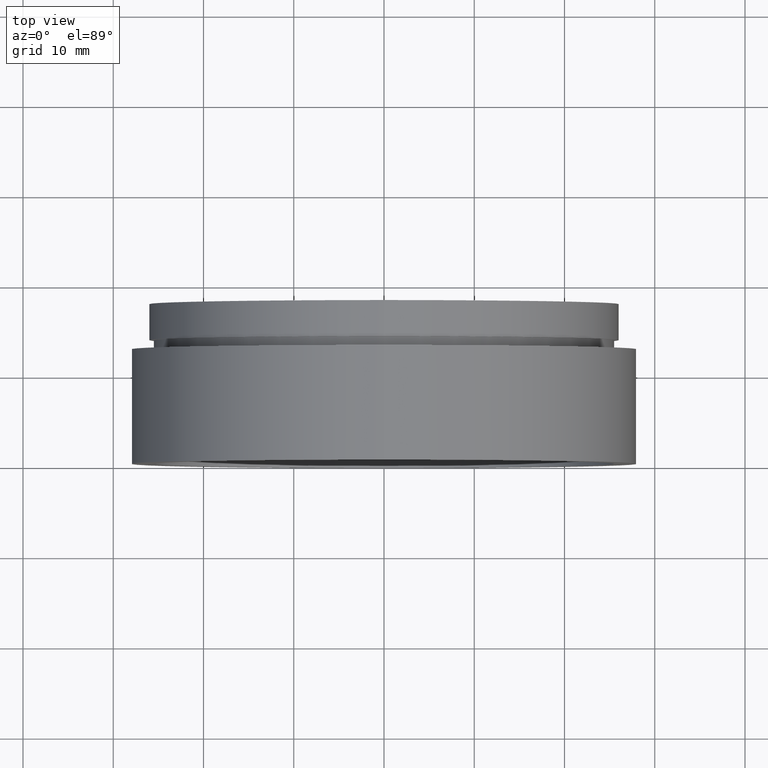
[diagram: clean part render]
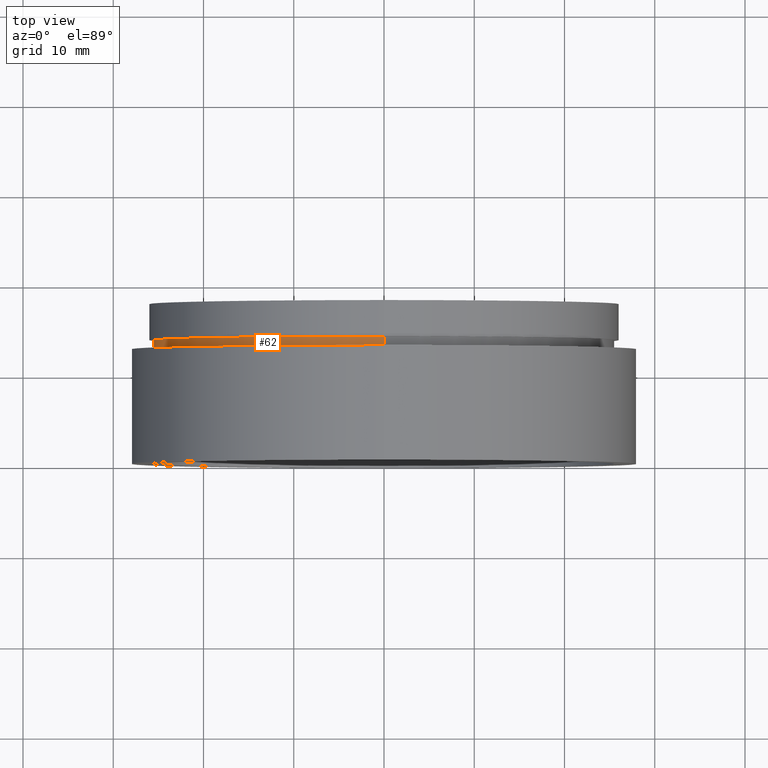
[diagram: same view with one face highlighted and labeled with its STEP entity id]
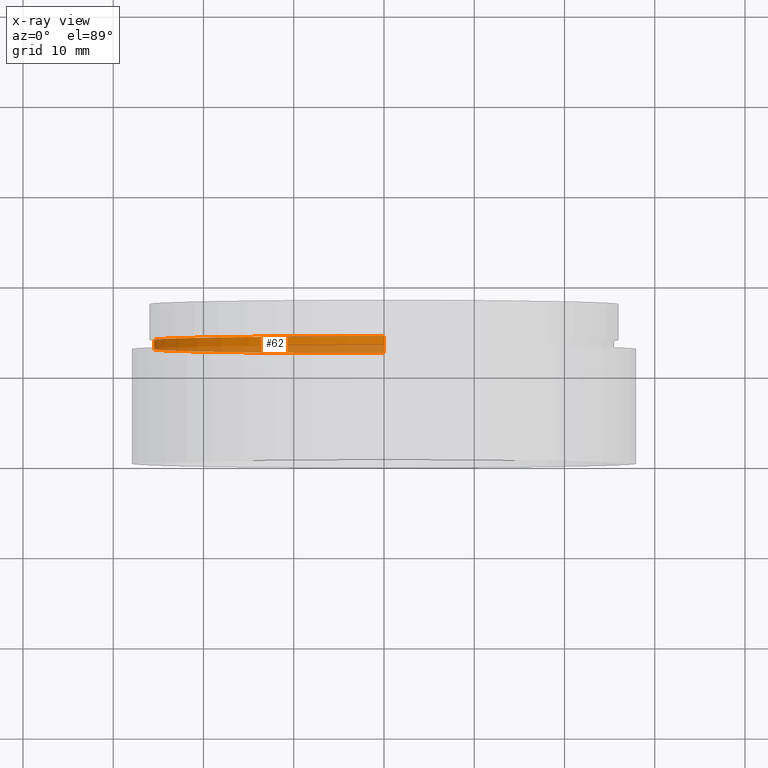
[diagram: x-ray of the same camera — body ghosted, the highlighted face saturated]
A machine part, top view. The second image highlights one B-rep face of the part: STEP entity #62.
The next image is the same camera in x-ray: the body ghosted, the highlighted face saturated — about 41% of this face is hidden behind the body in this view.
In plain terms, the highlighted cylindrical surface (partial cylindrical patch) has radius 25.5 mm, axis along (-0, 1, -0).
Its self-contained STEP definition (entity closure, byte-faithful):
#10 = LINE ( 'NONE', #45, #336 ) ;
#41 = DIRECTION ( 'NONE',  ( -0.0000000000000000000, 1.000000000000000000, -0.0000000000000000000 ) ) ;
#45 = CARTESIAN_POINT ( 'NONE',  ( 0.0000000000000000000, 161.3761669434274500, 25.50000000000001400 ) ) ;
#57 = CIRCLE ( 'NONE', #495, 25.50000000000001400 ) ;
#62 = ADVANCED_FACE ( 'NONE', ( #504 ), #354, .T. ) ;
#107 = CARTESIAN_POINT ( 'NONE',  ( 0.0000000000000000000, 161.3761669434274500, 0.0000000000000000000 ) ) ;
#110 = DIRECTION ( 'NONE',  ( -0.0000000000000000000, 1.000000000000000000, -0.0000000000000000000 ) ) ;
#127 = VERTEX_POINT ( 'NONE', #263 ) ;
#139 = CARTESIAN_POINT ( 'NONE',  ( 3.122849337825752600E-015, 161.3761669434274500, -25.50000000000001400 ) ) ;
#163 = LINE ( 'NONE', #139, #390 ) ;
#214 = AXIS2_PLACEMENT_3D ( 'NONE', #107, #110, #384 ) ;
#215 = CARTESIAN_POINT ( 'NONE',  ( 0.0000000000000000000, 12.69999999999998900, 25.50000000000001400 ) ) ;
#229 = VERTEX_POINT ( 'NONE', #215 ) ;
#244 = ORIENTED_EDGE ( 'NONE', *, *, #400, .T. ) ;
#263 = CARTESIAN_POINT ( 'NONE',  ( 3.122849337825752600E-015, 12.69999999999998900, -25.50000000000001400 ) ) ;
#264 = ORIENTED_EDGE ( 'NONE', *, *, #537, .F. ) ;
#287 = VERTEX_POINT ( 'NONE', #519 ) ;
#300 = EDGE_CURVE ( 'NONE', #588, #287, #367, .T. ) ;
#314 = EDGE_CURVE ( 'NONE', #127, #229, #57, .T. ) ;
#336 = VECTOR ( 'NONE', #566, 1000.000000000000000 ) ;
#354 = CYLINDRICAL_SURFACE ( 'NONE', #214, 25.50000000000001400 ) ;
#367 = CIRCLE ( 'NONE', #443, 25.50000000000001800 ) ;
#370 = CARTESIAN_POINT ( 'NONE',  ( 0.0000000000000000000, 12.69999999999998900, 0.0000000000000000000 ) ) ;
#384 = DIRECTION ( 'NONE',  ( 0.0000000000000000000, 0.0000000000000000000, 1.000000000000000000 ) ) ;
#390 = VECTOR ( 'NONE', #473, 1000.000000000000000 ) ;
#391 = ORIENTED_EDGE ( 'NONE', *, *, #300, .F. ) ;
#400 = EDGE_CURVE ( 'NONE', #229, #287, #10, .T. ) ;
#443 = AXIS2_PLACEMENT_3D ( 'NONE', #455, #616, #561 ) ;
#446 = ORIENTED_EDGE ( 'NONE', *, *, #314, .T. ) ;
#455 = CARTESIAN_POINT ( 'NONE',  ( 0.0000000000000000000, 13.69999999999999000, 0.0000000000000000000 ) ) ;
#459 = DIRECTION ( 'NONE',  ( 0.0000000000000000000, 0.0000000000000000000, 1.000000000000000000 ) ) ;
#473 = DIRECTION ( 'NONE',  ( -0.0000000000000000000, 1.000000000000000000, -0.0000000000000000000 ) ) ;
#495 = AXIS2_PLACEMENT_3D ( 'NONE', #370, #41, #459 ) ;
#504 = FACE_OUTER_BOUND ( 'NONE', #589, .T. ) ;
#519 = CARTESIAN_POINT ( 'NONE',  ( 0.0000000000000000000, 13.69999999999999000, 25.50000000000001800 ) ) ;
#529 = CARTESIAN_POINT ( 'NONE',  ( 3.122849337825753400E-015, 13.69999999999999000, -25.50000000000002100 ) ) ;
#537 = EDGE_CURVE ( 'NONE', #127, #588, #163, .T. ) ;
#561 = DIRECTION ( 'NONE',  ( 0.0000000000000000000, 0.0000000000000000000, 1.000000000000000000 ) ) ;
#566 = DIRECTION ( 'NONE',  ( -0.0000000000000000000, 1.000000000000000000, -0.0000000000000000000 ) ) ;
#588 = VERTEX_POINT ( 'NONE', #529 ) ;
#589 = EDGE_LOOP ( 'NONE', ( #264, #446, #244, #391 ) ) ;
#616 = DIRECTION ( 'NONE',  ( -0.0000000000000000000, 1.000000000000000000, -0.0000000000000000000 ) ) ;